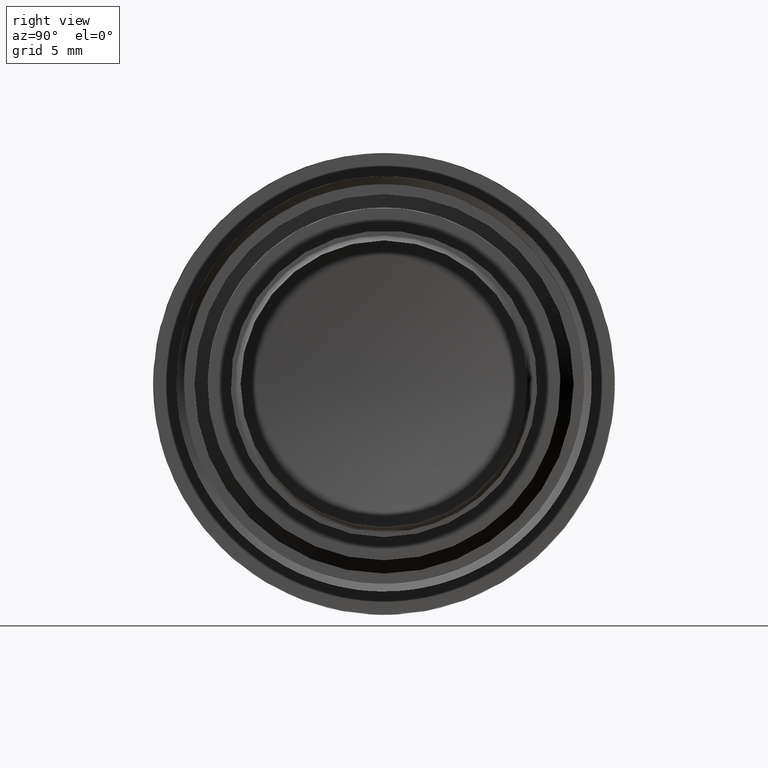
[diagram: clean part render]
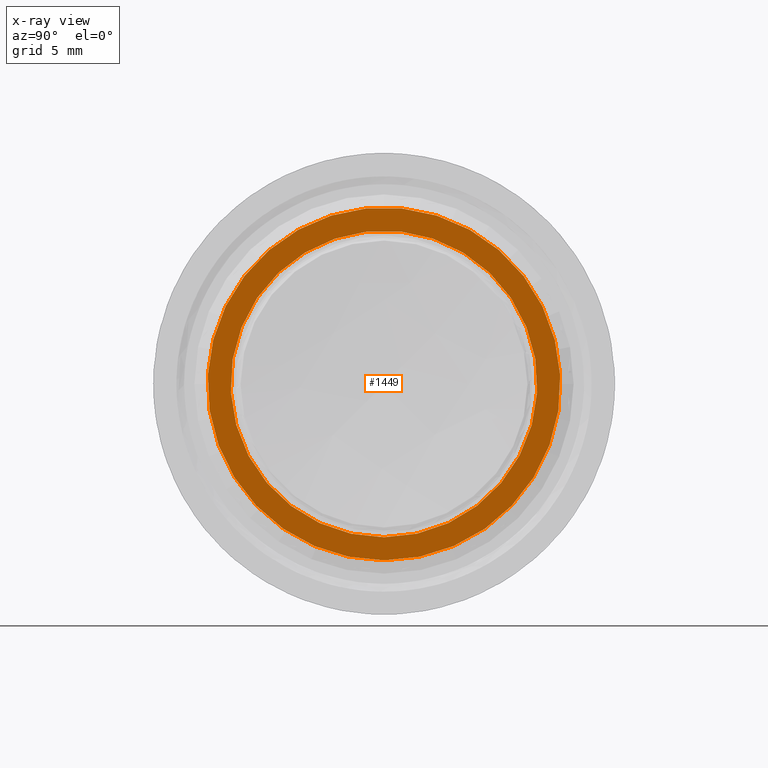
[diagram: x-ray — body ghosted, one internal face saturated and labeled with its STEP entity id]
A machine part, right view, then the same camera in x-ray: the body is ghosted and one INTERNAL B-rep face — a face not visible from any outside direction — is saturated and labeled: STEP entity #1449.
In plain terms, the highlighted planar face has unit normal (1, 0, 0).
Its self-contained STEP definition (entity closure, byte-faithful):
#162 = AXIS2_PLACEMENT_3D ( 'NONE', #4114, #4195, #864 ) ;
#799 = CARTESIAN_POINT ( 'NONE',  ( 78.39999999999911040, 0.000000000000000000, -10.70000000000071871 ) ) ;
#810 = FACE_BOUND ( 'NONE', #1143, .T. ) ;
#864 = DIRECTION ( 'NONE',  ( 0.000000000000000000, 0.000000000000000000, -1.000000000000000000 ) ) ;
#917 = FACE_OUTER_BOUND ( 'NONE', #1764, .T. ) ;
#1143 = EDGE_LOOP ( 'NONE', ( #5234 ) ) ;
#1291 = DIRECTION ( 'NONE',  ( 0.000000000000000000, 0.000000000000000000, -1.000000000000000000 ) ) ;
#1311 = VERTEX_POINT ( 'NONE', #799 ) ;
#1449 = ADVANCED_FACE ( 'NONE', ( #810, #917 ), #2954, .T. ) ;
#1456 = DIRECTION ( 'NONE',  ( 1.000000000000000000, 0.000000000000000000, 0.000000000000000000 ) ) ;
#1522 = AXIS2_PLACEMENT_3D ( 'NONE', #5078, #1456, #3878 ) ;
#1764 = EDGE_LOOP ( 'NONE', ( #4581 ) ) ;
#1885 = EDGE_CURVE ( 'NONE', #2084, #2084, #3506, .T. ) ;
#2084 = VERTEX_POINT ( 'NONE', #2912 ) ;
#2119 = CARTESIAN_POINT ( 'NONE',  ( 78.39999999999911040, 0.000000000000000000, 0.000000000000000000 ) ) ;
#2912 = CARTESIAN_POINT ( 'NONE',  ( 78.39999999999861302, 0.000000000000000000, -9.300000000001082512 ) ) ;
#2954 = PLANE ( 'NONE',  #162 ) ;
#3328 = DIRECTION ( 'NONE',  ( 1.000000000000000000, 0.000000000000000000, 0.000000000000000000 ) ) ;
#3351 = CIRCLE ( 'NONE', #4041, 10.70000000000071871 ) ;
#3506 = CIRCLE ( 'NONE', #1522, 9.300000000001082512 ) ;
#3878 = DIRECTION ( 'NONE',  ( 0.000000000000000000, 0.000000000000000000, -1.000000000000000000 ) ) ;
#4041 = AXIS2_PLACEMENT_3D ( 'NONE', #2119, #3328, #1291 ) ;
#4114 = CARTESIAN_POINT ( 'NONE',  ( 78.39999999999879776, 9.300000000001087841, 0.000000000000000000 ) ) ;
#4195 = DIRECTION ( 'NONE',  ( 1.000000000000000000, 0.000000000000000000, 0.000000000000000000 ) ) ;
#4581 = ORIENTED_EDGE ( 'NONE', *, *, #4633, .T. ) ;
#4633 = EDGE_CURVE ( 'NONE', #1311, #1311, #3351, .T. ) ;
#5078 = CARTESIAN_POINT ( 'NONE',  ( 78.39999999999861302, 0.000000000000000000, 0.000000000000000000 ) ) ;
#5234 = ORIENTED_EDGE ( 'NONE', *, *, #1885, .F. ) ;